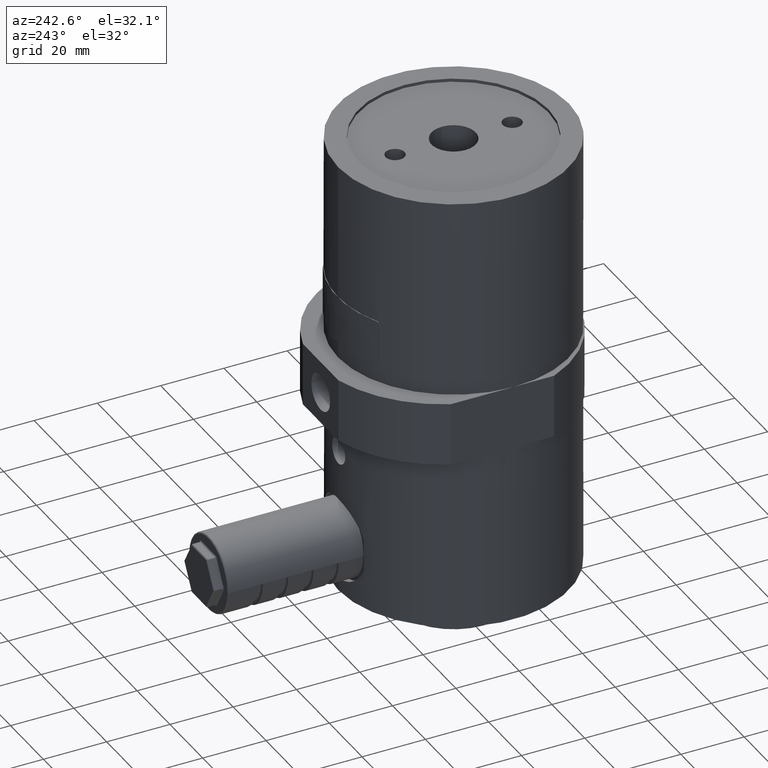
[diagram: clean part render]
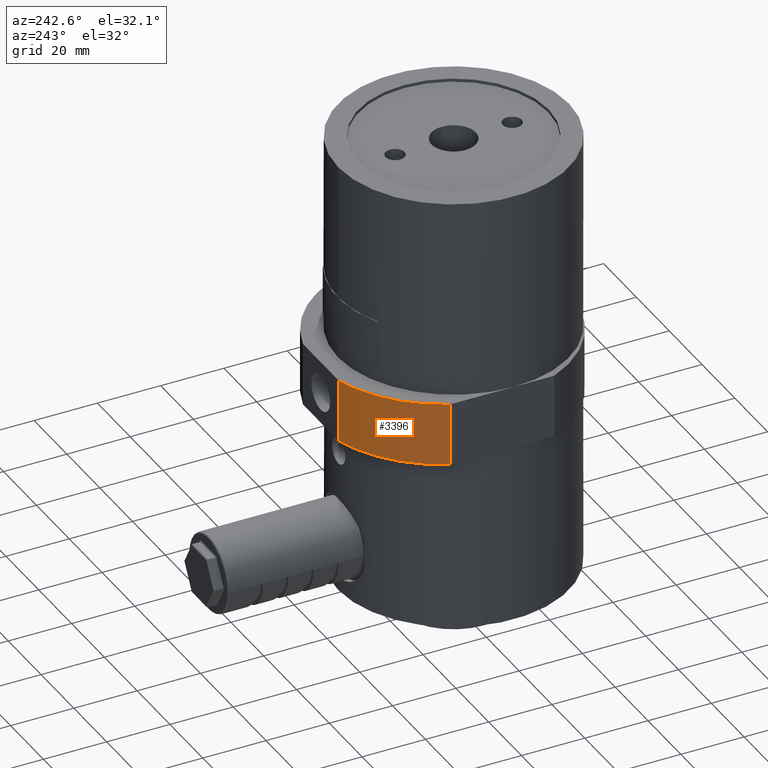
[diagram: same view with one face highlighted and labeled with its STEP entity id]
A machine part, auxiliary view. The second image highlights one B-rep face of the part: STEP entity #3396.
In plain terms, the highlighted cylindrical surface (partial cylindrical patch) has radius 40 mm, axis along (0, -0, 1).
Its self-contained STEP definition (entity closure, byte-faithful):
#236 = CARTESIAN_POINT ( 'NONE',  ( -36.50000000000000000, 19.85306817195360200, -63.00000000000000000 ) ) ;
#260 = VECTOR ( 'NONE', #1543, 1000.000000000000000 ) ;
#499 = DIRECTION ( 'NONE',  ( 0.0000000000000000000, -1.000000000000000000, 0.0000000000000000000 ) ) ;
#541 = ORIENTED_EDGE ( 'NONE', *, *, #3495, .T. ) ;
#1102 = EDGE_LOOP ( 'NONE', ( #1399, #2963, #4190, #541 ) ) ;
#1259 = AXIS2_PLACEMENT_3D ( 'NONE', #4505, #1989, #499 ) ;
#1399 = ORIENTED_EDGE ( 'NONE', *, *, #2836, .F. ) ;
#1453 = CIRCLE ( 'NONE', #2782, 40.00000000000000000 ) ;
#1543 = DIRECTION ( 'NONE',  ( -4.756893958418750000E-032, 1.224606353822383900E-016, -1.000000000000000000 ) ) ;
#1718 = EDGE_CURVE ( 'NONE', #2251, #3077, #3708, .T. ) ;
#1989 = DIRECTION ( 'NONE',  ( 4.756893958418750000E-032, -1.224606353822383900E-016, 1.000000000000000000 ) ) ;
#2113 = CARTESIAN_POINT ( 'NONE',  ( -10.85126720710539900, 41.99000000000000200, -83.00000000000000000 ) ) ;
#2251 = VERTEX_POINT ( 'NONE', #236 ) ;
#2305 = LINE ( 'NONE', #2113, #260 ) ;
#2313 = LINE ( 'NONE', #3001, #4207 ) ;
#2546 = DIRECTION ( 'NONE',  ( -4.756893958418750000E-032, 1.224606353822383900E-016, -1.000000000000000000 ) ) ;
#2679 = DIRECTION ( 'NONE',  ( 0.0000000000000000000, 1.000000000000000000, 0.0000000000000000000 ) ) ;
#2702 = FACE_OUTER_BOUND ( 'NONE', #1102, .T. ) ;
#2782 = AXIS2_PLACEMENT_3D ( 'NONE', #5653, #3682, #2679 ) ;
#2836 = EDGE_CURVE ( 'NONE', #5871, #5852, #1453, .T. ) ;
#2963 = ORIENTED_EDGE ( 'NONE', *, *, #3357, .F. ) ;
#3001 = CARTESIAN_POINT ( 'NONE',  ( -36.50000000000000000, 19.85306817195360200, -63.00000000000000000 ) ) ;
#3006 = AXIS2_PLACEMENT_3D ( 'NONE', #3510, #5918, #6492 ) ;
#3077 = VERTEX_POINT ( 'NONE', #3574 ) ;
#3357 = EDGE_CURVE ( 'NONE', #2251, #5871, #2313, .T. ) ;
#3396 = ADVANCED_FACE ( 'NONE', ( #2702 ), #5541, .T. ) ;
#3495 = EDGE_CURVE ( 'NONE', #3077, #5852, #2305, .T. ) ;
#3510 = CARTESIAN_POINT ( 'NONE',  ( -2.996843193803814800E-030, 3.490000000000000200, -63.00000000000000000 ) ) ;
#3574 = CARTESIAN_POINT ( 'NONE',  ( -10.85126720710539900, 41.99000000000000200, -63.00000000000000000 ) ) ;
#3682 = DIRECTION ( 'NONE',  ( -4.756893958418750000E-032, 1.224606353822383900E-016, -1.000000000000000000 ) ) ;
#3708 = CIRCLE ( 'NONE', #3006, 40.00000000000000000 ) ;
#4190 = ORIENTED_EDGE ( 'NONE', *, *, #1718, .T. ) ;
#4207 = VECTOR ( 'NONE', #2546, 1000.000000000000000 ) ;
#4505 = CARTESIAN_POINT ( 'NONE',  ( -3.948221985487564300E-030, 3.490000000000000200, -83.00000000000000000 ) ) ;
#5541 = CYLINDRICAL_SURFACE ( 'NONE', #1259, 40.00000000000000000 ) ;
#5653 = CARTESIAN_POINT ( 'NONE',  ( -3.948221985487564300E-030, 3.490000000000000200, -83.00000000000000000 ) ) ;
#5852 = VERTEX_POINT ( 'NONE', #5911 ) ;
#5871 = VERTEX_POINT ( 'NONE', #6341 ) ;
#5911 = CARTESIAN_POINT ( 'NONE',  ( -10.85126720710539900, 41.99000000000000200, -83.00000000000000000 ) ) ;
#5918 = DIRECTION ( 'NONE',  ( -4.756893958418750000E-032, 1.224606353822383900E-016, -1.000000000000000000 ) ) ;
#6341 = CARTESIAN_POINT ( 'NONE',  ( -36.50000000000000000, 19.85306817195360200, -83.00000000000000000 ) ) ;
#6492 = DIRECTION ( 'NONE',  ( 0.0000000000000000000, 1.000000000000000000, 0.0000000000000000000 ) ) ;